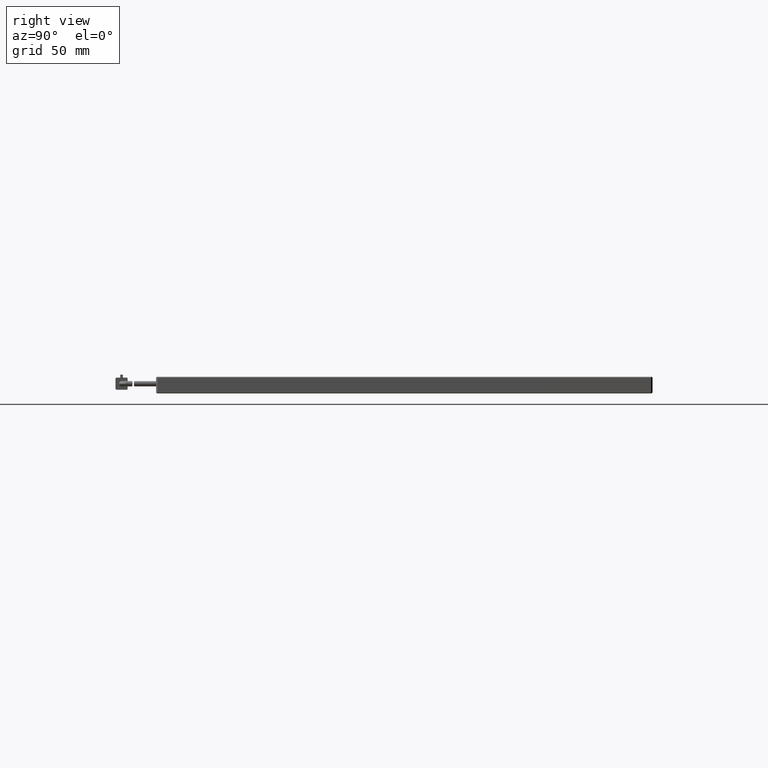
[diagram: clean part render]
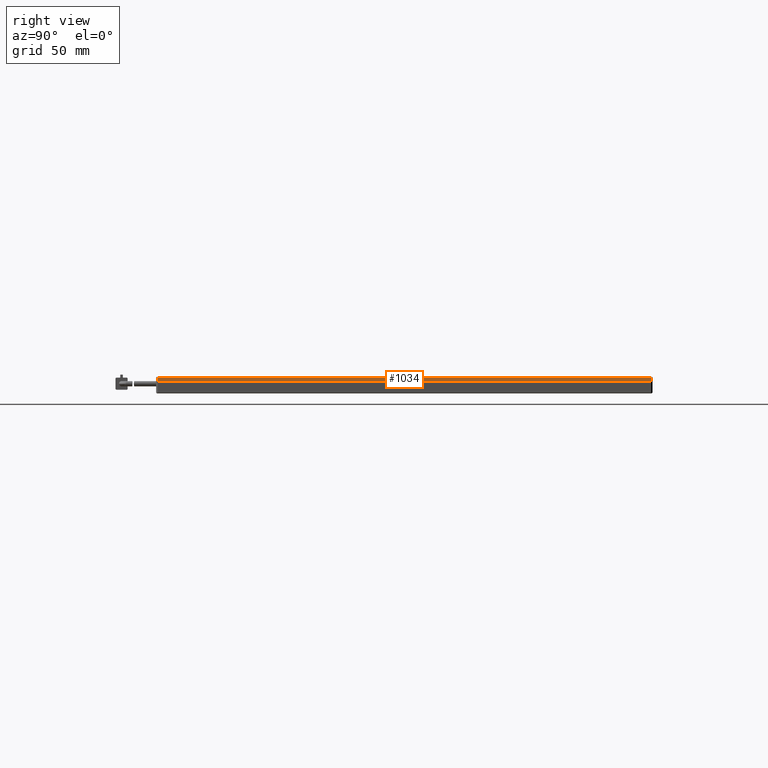
[diagram: same view with one face highlighted and labeled with its STEP entity id]
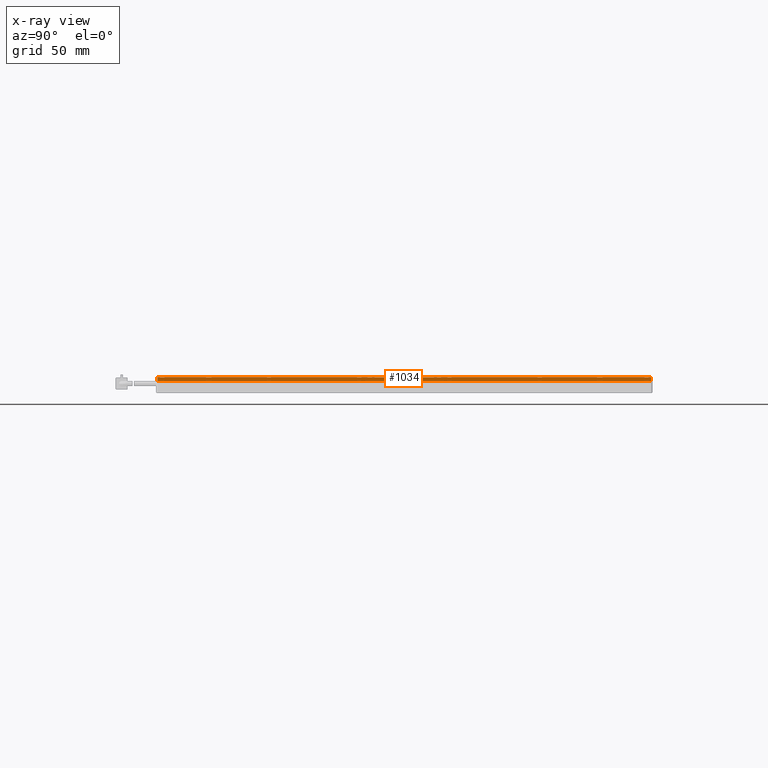
[diagram: x-ray of the same camera — body ghosted, the highlighted face saturated]
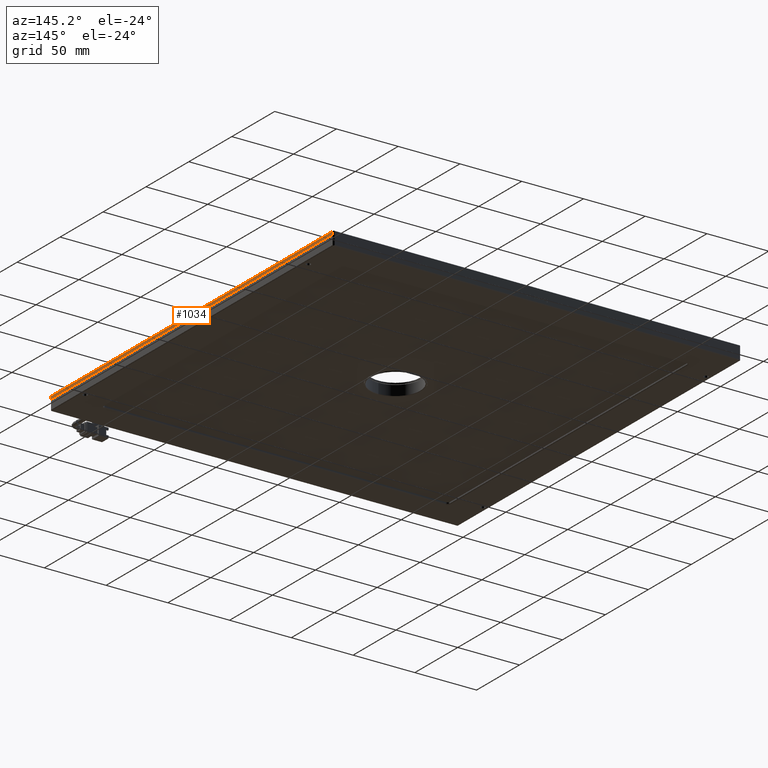
[diagram: same view with one face highlighted and labeled with its STEP entity id]
A machine part, right view. The second image highlights one B-rep face of the part: STEP entity #1034.
The next image is the same camera in x-ray: the body ghosted, the highlighted face saturated — about 0% of this face is hidden behind the body in this view.
A second angle (auxiliary view) of the same face is appended — the face is thin or edge-on in the first view.
In plain terms, the highlighted planar face has unit normal (-1, 0, 0).
Its self-contained STEP definition (entity closure, byte-faithful):
#1034 = ADVANCED_FACE ( 'NONE', ( #19541 ), #18500, .F. ) ;
#4297 = EDGE_CURVE ( 'NONE', #8553, #25926, #25016, .T. ) ;
#6410 = CARTESIAN_POINT ( 'NONE',  ( 133.7560923609355300, 228.3065740479060500, 10.50000000001909800 ) ) ;
#7220 = LINE ( 'NONE', #18594, #12020 ) ;
#7389 = CARTESIAN_POINT ( 'NONE',  ( 133.7560923609355300, -99.69342595209396100, 8.000000000019097600 ) ) ;
#8553 = VERTEX_POINT ( 'NONE', #7389 ) ;
#9837 = DIRECTION ( 'NONE',  ( -0.0000000000000000000, -0.0000000000000000000, -1.000000000000000000 ) ) ;
#9939 = CARTESIAN_POINT ( 'NONE',  ( 133.7560923609355300, 228.3065740479060500, 11.00000000001909900 ) ) ;
#10101 = ORIENTED_EDGE ( 'NONE', *, *, #19148, .F. ) ;
#10677 = DIRECTION ( 'NONE',  ( -1.000000000000000000, 0.0000000000000000000, 0.0000000000000000000 ) ) ;
#11111 = VERTEX_POINT ( 'NONE', #26645 ) ;
#12020 = VECTOR ( 'NONE', #18689, 1000.000000000000000 ) ;
#12124 = EDGE_CURVE ( 'NONE', #11111, #24239, #24475, .T. ) ;
#15699 = DIRECTION ( 'NONE',  ( 0.0000000000000000000, 0.0000000000000000000, 1.000000000000000000 ) ) ;
#16386 = CARTESIAN_POINT ( 'NONE',  ( 133.7560923609355300, 228.3065740479060500, 8.000000000019097600 ) ) ;
#16504 = ORIENTED_EDGE ( 'NONE', *, *, #12124, .F. ) ;
#17216 = EDGE_LOOP ( 'NONE', ( #16504, #31463, #19269, #10101 ) ) ;
#18160 = VECTOR ( 'NONE', #27684, 1000.000000000000000 ) ;
#18500 = PLANE ( 'NONE',  #25530 ) ;
#18594 = CARTESIAN_POINT ( 'NONE',  ( 133.7560923609355300, -99.69342595209396100, 11.00000000001909900 ) ) ;
#18689 = DIRECTION ( 'NONE',  ( 0.0000000000000000000, 0.0000000000000000000, 1.000000000000000000 ) ) ;
#19148 = EDGE_CURVE ( 'NONE', #24239, #25926, #19249, .T. ) ;
#19249 = LINE ( 'NONE', #9939, #28895 ) ;
#19269 = ORIENTED_EDGE ( 'NONE', *, *, #4297, .T. ) ;
#19541 = FACE_OUTER_BOUND ( 'NONE', #17216, .T. ) ;
#21107 = DIRECTION ( 'NONE',  ( 0.0000000000000000000, 1.000000000000000000, -0.0000000000000000000 ) ) ;
#21220 = CARTESIAN_POINT ( 'NONE',  ( 133.7560923609355300, -100.6934259520939600, 11.00000000001909900 ) ) ;
#24094 = VECTOR ( 'NONE', #21107, 1000.000000000000000 ) ;
#24239 = VERTEX_POINT ( 'NONE', #6410 ) ;
#24475 = LINE ( 'NONE', #26159, #24094 ) ;
#24767 = EDGE_CURVE ( 'NONE', #8553, #11111, #7220, .T. ) ;
#25016 = LINE ( 'NONE', #32368, #18160 ) ;
#25530 = AXIS2_PLACEMENT_3D ( 'NONE', #21220, #10677, #15699 ) ;
#25926 = VERTEX_POINT ( 'NONE', #16386 ) ;
#26159 = CARTESIAN_POINT ( 'NONE',  ( 133.7560923609355300, -100.6934259520939600, 10.50000000001909800 ) ) ;
#26645 = CARTESIAN_POINT ( 'NONE',  ( 133.7560923609355300, -99.69342595209396100, 10.50000000001909800 ) ) ;
#27684 = DIRECTION ( 'NONE',  ( 0.0000000000000000000, 1.000000000000000000, 0.0000000000000000000 ) ) ;
#28895 = VECTOR ( 'NONE', #9837, 1000.000000000000000 ) ;
#31463 = ORIENTED_EDGE ( 'NONE', *, *, #24767, .F. ) ;
#32368 = CARTESIAN_POINT ( 'NONE',  ( 133.7560923609355300, 229.3065740479060500, 8.000000000019099400 ) ) ;